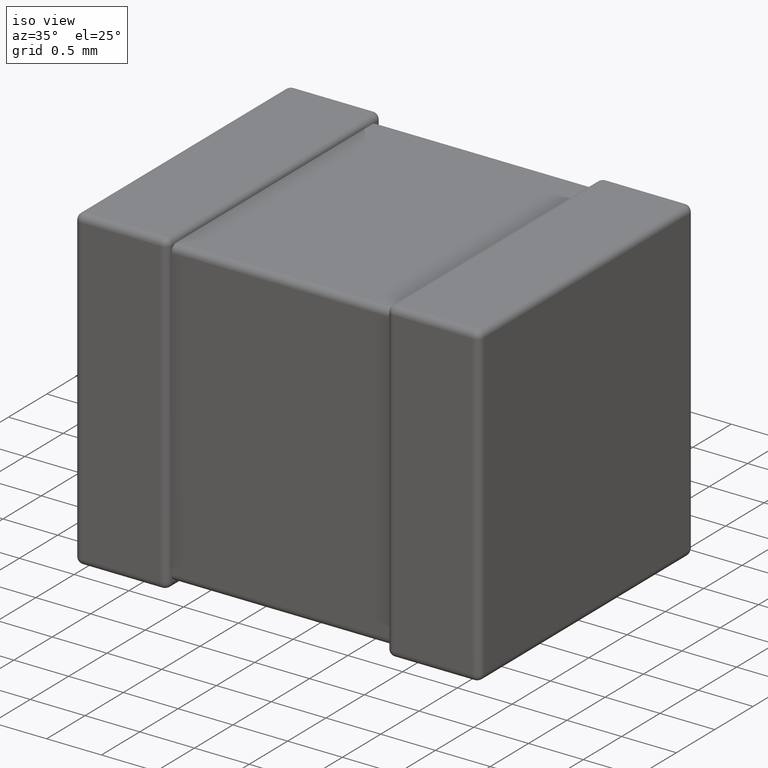
[diagram: clean part render]
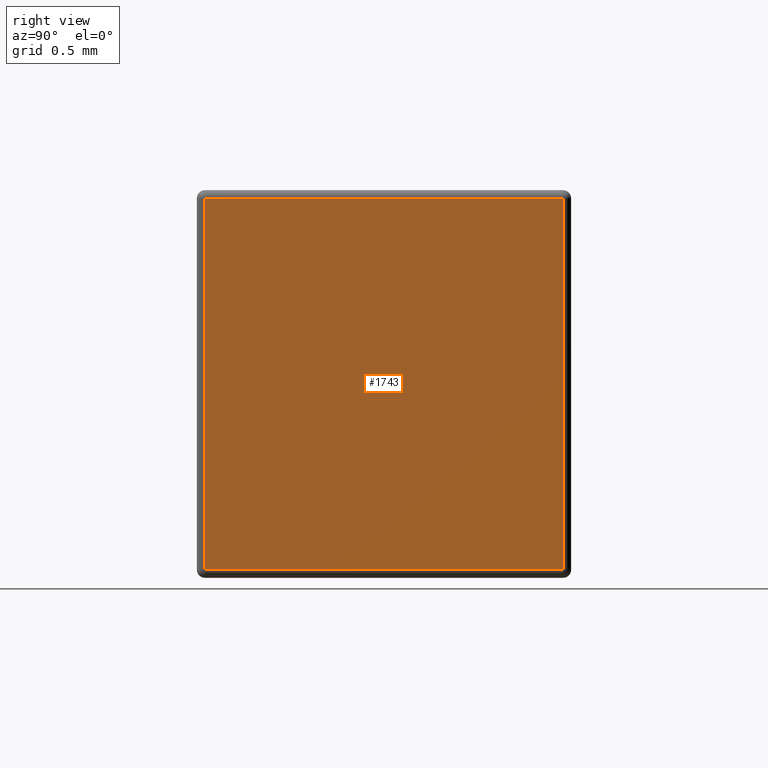
[diagram: tour spotlight — one face highlighted and labeled with its STEP entity id]
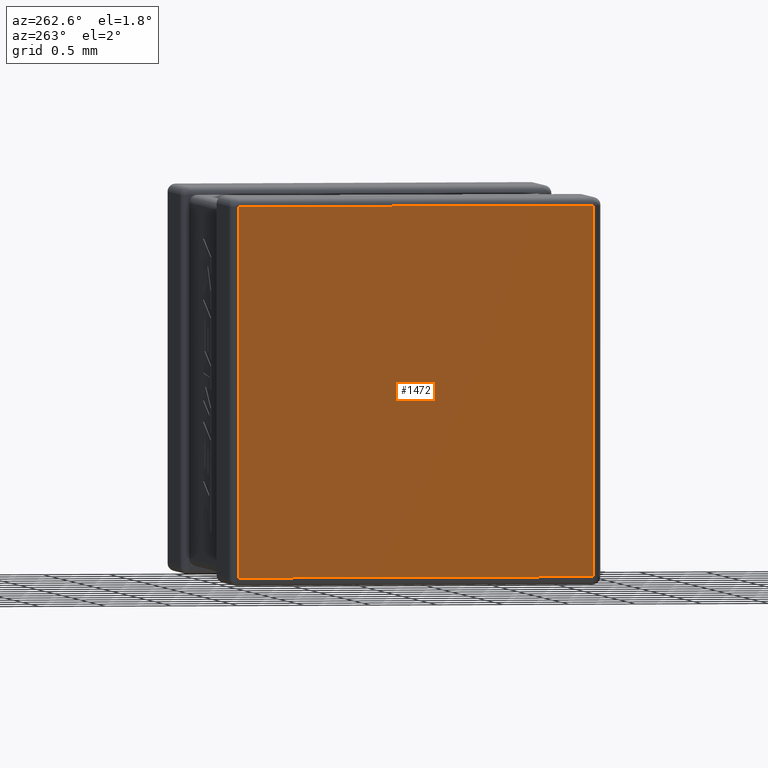
[diagram: tour spotlight — one face highlighted and labeled with its STEP entity id]
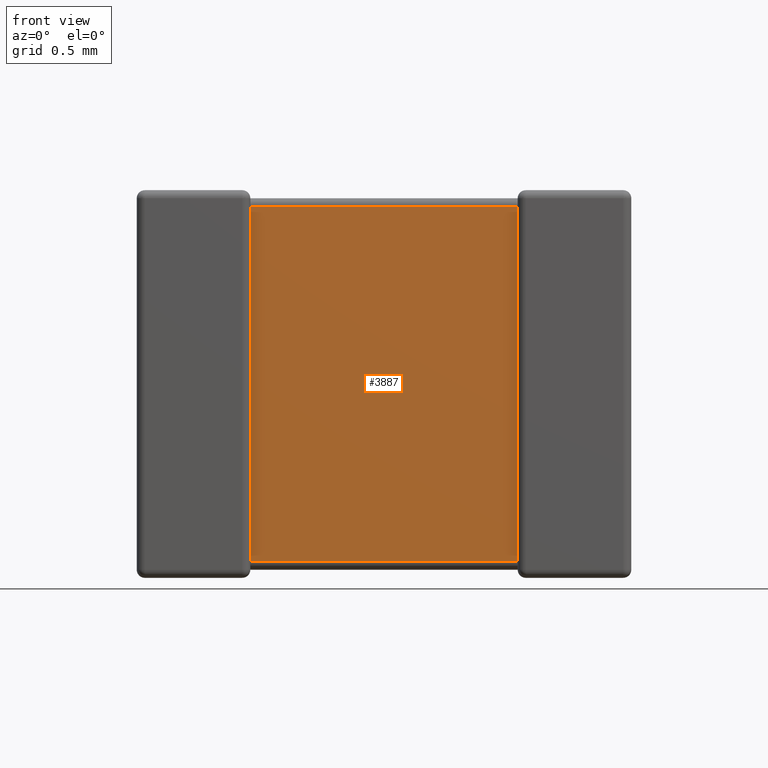
[diagram: tour spotlight — one face highlighted and labeled with its STEP entity id]
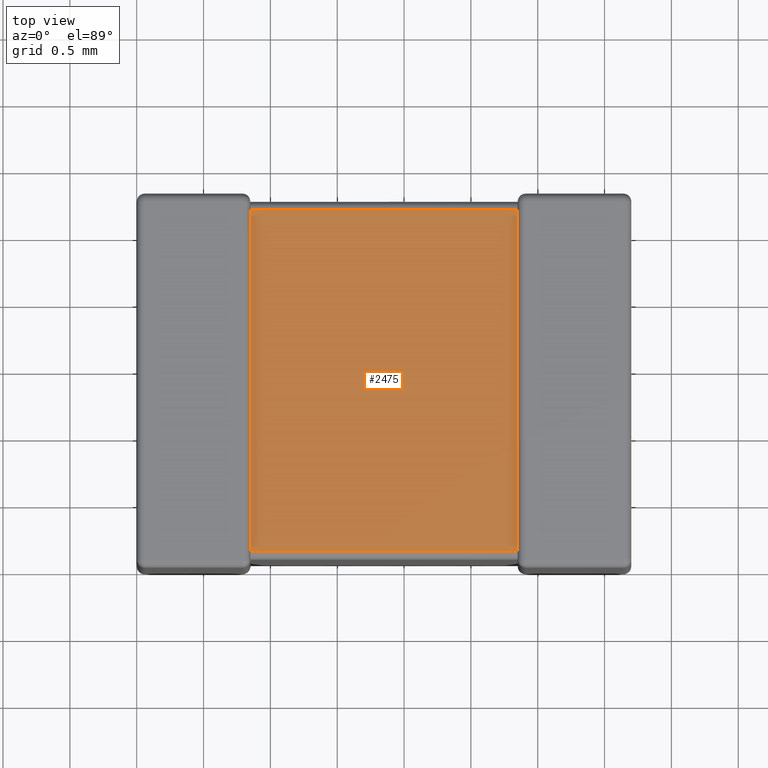
[diagram: tour spotlight — one face highlighted and labeled with its STEP entity id]
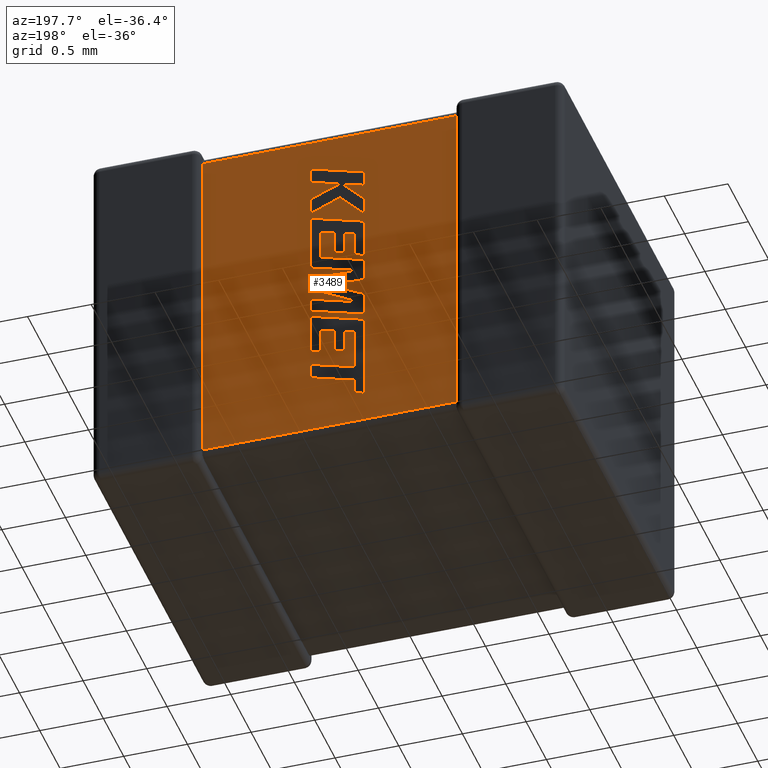
[diagram: tour spotlight — one face highlighted and labeled with its STEP entity id]
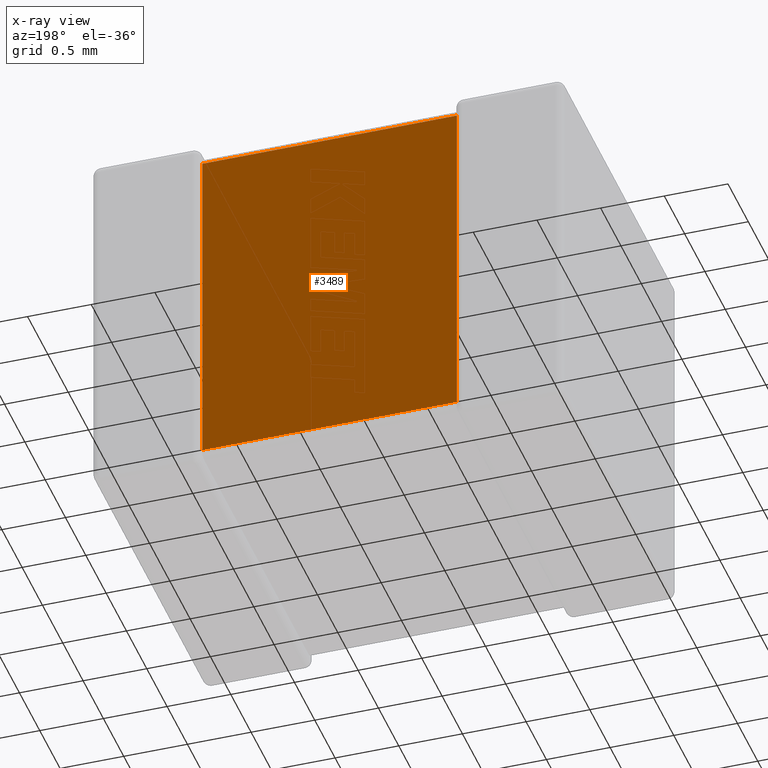
[diagram: x-ray of the same camera — body ghosted, this tour face saturated]
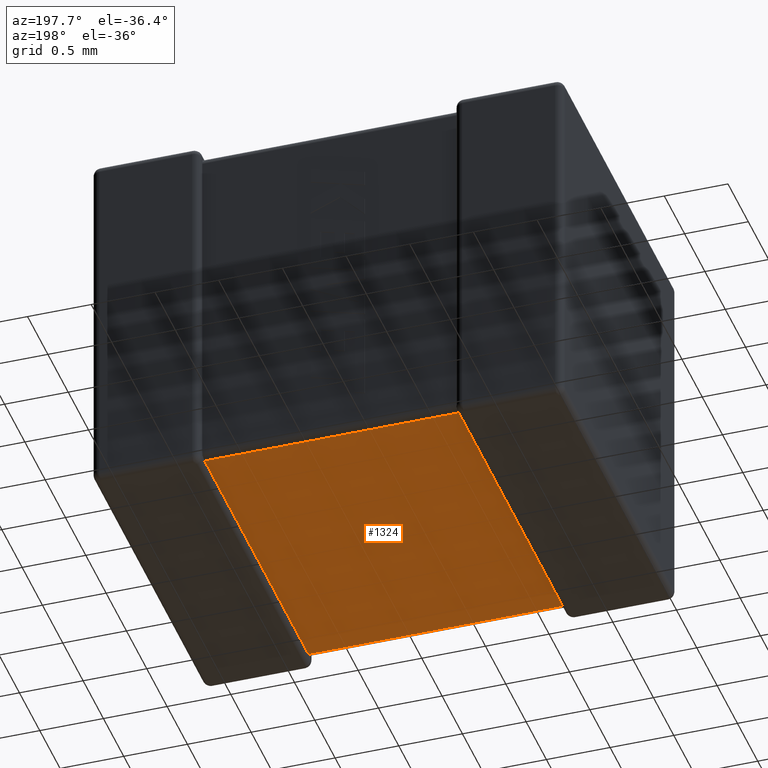
[diagram: tour spotlight — one face highlighted and labeled with its STEP entity id]
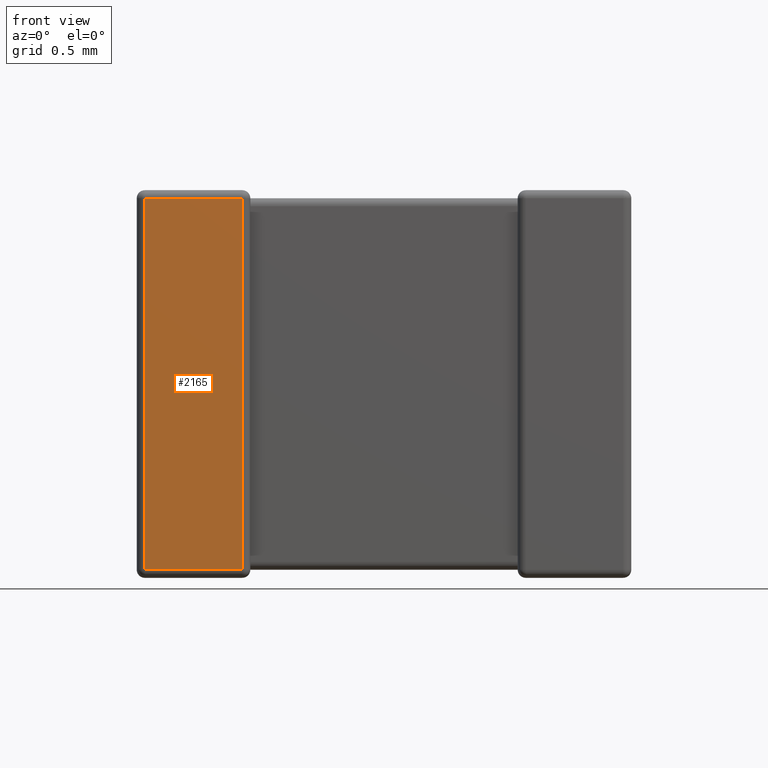
[diagram: tour spotlight — one face highlighted and labeled with its STEP entity id]
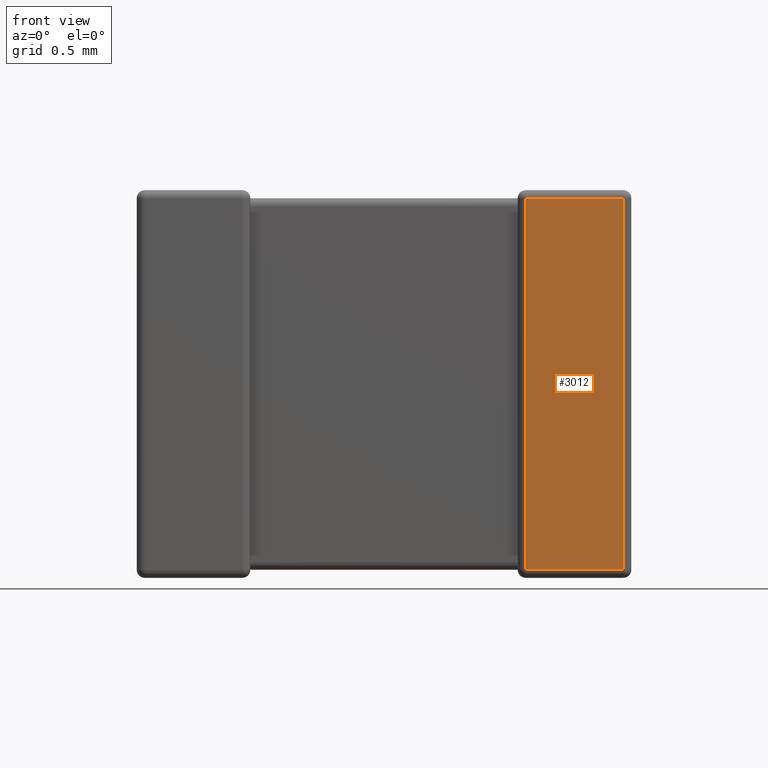
[diagram: tour spotlight — one face highlighted and labeled with its STEP entity id]
A machine part: a face-by-face anatomy tour. The part has 125 B-rep faces; the first image is the clean iso view, then the 8 largest visible faces are spotlighted one at a time (largest first), each with its STEP entity span.

Face 1 — right view, entity #1743. In plain terms, the highlighted planar face has unit normal (-1, 0, 0).
Definition (entity closure, byte-faithful):
#53 = DIRECTION ( 'NONE',  ( 0.000000000000000000, 1.000000000000000000, -0.000000000000000000 ) ) ;
#140 = LINE ( 'NONE', #3795, #195 ) ;
#195 = VECTOR ( 'NONE', #2264, 1000.000000000000000 ) ;
#249 = ORIENTED_EDGE ( 'NONE', *, *, #1127, .T. ) ;
#262 = VECTOR ( 'NONE', #4074, 1000.000000000000000 ) ;
#465 = LINE ( 'NONE', #1493, #4045 ) ;
#643 = DIRECTION ( 'NONE',  ( 0.000000000000000000, 0.000000000000000000, 1.000000000000000000 ) ) ;
#814 = ORIENTED_EDGE ( 'NONE', *, *, #1519, .T. ) ;
#1127 = EDGE_CURVE ( 'NONE', #2238, #2617, #140, .T. ) ;
#1145 = LINE ( 'NONE', #3232, #4659 ) ;
#1424 = PLANE ( 'NONE',  #3273 ) ;
#1446 = CARTESIAN_POINT ( 'NONE',  ( 3.699999999999999734, 0.000000000000000000, 0.000000000000000000 ) ) ;
#1493 = CARTESIAN_POINT ( 'NONE',  ( 3.699999999999999734, 0.000000000000000000, -2.839679999999999982 ) ) ;
#1519 = EDGE_CURVE ( 'NONE', #3490, #1730, #1145, .T. ) ;
#1730 = VERTEX_POINT ( 'NONE', #1789 ) ;
#1743 = ADVANCED_FACE ( 'NONE', ( #1761 ), #1424, .F. ) ;
#1761 = FACE_OUTER_BOUND ( 'NONE', #2454, .T. ) ;
#1789 = CARTESIAN_POINT ( 'NONE',  ( 3.699999999999999734, 2.739679999999999893, -0.06031999999999999862 ) ) ;
#1869 = EDGE_CURVE ( 'NONE', #2617, #3490, #465, .T. ) ;
#2238 = VERTEX_POINT ( 'NONE', #2569 ) ;
#2250 = LINE ( 'NONE', #3782, #262 ) ;
#2264 = DIRECTION ( 'NONE',  ( 0.000000000000000000, 0.000000000000000000, -1.000000000000000000 ) ) ;
#2454 = EDGE_LOOP ( 'NONE', ( #249, #3769, #814, #3158 ) ) ;
#2569 = CARTESIAN_POINT ( 'NONE',  ( 3.699999999999999734, 0.06031999999999999862, -0.06031999999999999862 ) ) ;
#2617 = VERTEX_POINT ( 'NONE', #3021 ) ;
#3021 = CARTESIAN_POINT ( 'NONE',  ( 3.699999999999999734, 0.06031999999999999862, -2.839679999999999982 ) ) ;
#3158 = ORIENTED_EDGE ( 'NONE', *, *, #3942, .T. ) ;
#3188 = DIRECTION ( 'NONE',  ( 0.000000000000000000, 0.000000000000000000, 1.000000000000000000 ) ) ;
#3232 = CARTESIAN_POINT ( 'NONE',  ( 3.699999999999999734, 2.739679999999999893, 0.000000000000000000 ) ) ;
#3273 = AXIS2_PLACEMENT_3D ( 'NONE', #1446, #3425, #643 ) ;
#3425 = DIRECTION ( 'NONE',  ( -1.000000000000000000, 0.000000000000000000, 0.000000000000000000 ) ) ;
#3490 = VERTEX_POINT ( 'NONE', #3786 ) ;
#3769 = ORIENTED_EDGE ( 'NONE', *, *, #1869, .T. ) ;
#3782 = CARTESIAN_POINT ( 'NONE',  ( 3.699999999999999734, 0.000000000000000000, -0.06031999999999999862 ) ) ;
#3786 = CARTESIAN_POINT ( 'NONE',  ( 3.699999999999999734, 2.739679999999999893, -2.839679999999999982 ) ) ;
#3795 = CARTESIAN_POINT ( 'NONE',  ( 3.699999999999999734, 0.06031999999999999862, 0.000000000000000000 ) ) ;
#3942 = EDGE_CURVE ( 'NONE', #1730, #2238, #2250, .T. ) ;
#4045 = VECTOR ( 'NONE', #53, 1000.000000000000000 ) ;
#4074 = DIRECTION ( 'NONE',  ( 0.000000000000000000, -1.000000000000000000, 0.000000000000000000 ) ) ;
#4659 = VECTOR ( 'NONE', #3188, 1000.000000000000000 ) ;

Face 2 — auxiliary view, entity #1472. In plain terms, the highlighted planar face has unit normal (-1, 0, 0).
Definition (entity closure, byte-faithful):
#9 = CARTESIAN_POINT ( 'NONE',  ( 0.000000000000000000, 0.000000000000000000, 0.000000000000000000 ) ) ;
#27 = VECTOR ( 'NONE', #2543, 1000.000000000000000 ) ;
#403 = CARTESIAN_POINT ( 'NONE',  ( 0.000000000000000000, 2.799999999999999822, -0.06031999999999999862 ) ) ;
#956 = VERTEX_POINT ( 'NONE', #967 ) ;
#967 = CARTESIAN_POINT ( 'NONE',  ( 0.000000000000000000, 0.06031999999999999862, -0.06031999999999999862 ) ) ;
#1040 = ORIENTED_EDGE ( 'NONE', *, *, #4539, .T. ) ;
#1121 = LINE ( 'NONE', #403, #4276 ) ;
#1128 = DIRECTION ( 'NONE',  ( -1.000000000000000000, 0.000000000000000000, 0.000000000000000000 ) ) ;
#1129 = LINE ( 'NONE', #2187, #3646 ) ;
#1301 = ORIENTED_EDGE ( 'NONE', *, *, #3139, .T. ) ;
#1413 = EDGE_CURVE ( 'NONE', #1999, #956, #1728, .T. ) ;
#1457 = CARTESIAN_POINT ( 'NONE',  ( 0.000000000000000000, 2.739679999999999893, -2.839679999999999982 ) ) ;
#1459 = ORIENTED_EDGE ( 'NONE', *, *, #1413, .T. ) ;
#1472 = ADVANCED_FACE ( 'NONE', ( #3095 ), #3549, .T. ) ;
#1728 = LINE ( 'NONE', #3885, #2753 ) ;
#1793 = DIRECTION ( 'NONE',  ( 0.000000000000000000, 0.000000000000000000, 1.000000000000000000 ) ) ;
#1999 = VERTEX_POINT ( 'NONE', #4563 ) ;
#2099 = DIRECTION ( 'NONE',  ( -0.000000000000000000, -0.000000000000000000, 1.000000000000000000 ) ) ;
#2187 = CARTESIAN_POINT ( 'NONE',  ( 0.000000000000000000, 2.739679999999999893, -2.899999999999999911 ) ) ;
#2269 = VERTEX_POINT ( 'NONE', #2597 ) ;
#2449 = VERTEX_POINT ( 'NONE', #1457 ) ;
#2543 = DIRECTION ( 'NONE',  ( -0.000000000000000000, -1.000000000000000000, -0.000000000000000000 ) ) ;
#2597 = CARTESIAN_POINT ( 'NONE',  ( 0.000000000000000000, 2.739679999999999893, -0.06031999999999999862 ) ) ;
#2753 = VECTOR ( 'NONE', #2099, 1000.000000000000000 ) ;
#2989 = ORIENTED_EDGE ( 'NONE', *, *, #4476, .T. ) ;
#3095 = FACE_OUTER_BOUND ( 'NONE', #4432, .T. ) ;
#3139 = EDGE_CURVE ( 'NONE', #956, #2269, #1121, .T. ) ;
#3225 = DIRECTION ( 'NONE',  ( -0.000000000000000000, 1.000000000000000000, -0.000000000000000000 ) ) ;
#3304 = CARTESIAN_POINT ( 'NONE',  ( 0.000000000000000000, 0.000000000000000000, -2.839679999999999982 ) ) ;
#3549 = PLANE ( 'NONE',  #4132 ) ;
#3646 = VECTOR ( 'NONE', #3649, 1000.000000000000000 ) ;
#3649 = DIRECTION ( 'NONE',  ( -0.000000000000000000, 0.000000000000000000, -1.000000000000000000 ) ) ;
#3885 = CARTESIAN_POINT ( 'NONE',  ( 0.000000000000000000, 0.06031999999999999862, 0.000000000000000000 ) ) ;
#4060 = LINE ( 'NONE', #3304, #27 ) ;
#4132 = AXIS2_PLACEMENT_3D ( 'NONE', #9, #1128, #1793 ) ;
#4276 = VECTOR ( 'NONE', #3225, 1000.000000000000000 ) ;
#4432 = EDGE_LOOP ( 'NONE', ( #2989, #1459, #1301, #1040 ) ) ;
#4476 = EDGE_CURVE ( 'NONE', #2449, #1999, #4060, .T. ) ;
#4539 = EDGE_CURVE ( 'NONE', #2269, #2449, #1129, .T. ) ;
#4563 = CARTESIAN_POINT ( 'NONE',  ( 0.000000000000000000, 0.06031999999999999862, -2.839679999999999982 ) ) ;

Face 3 — front view, entity #3887. In plain terms, the highlighted planar face has unit normal (0, -1, 0).
Definition (entity closure, byte-faithful):
#26 = VERTEX_POINT ( 'NONE', #2132 ) ;
#426 = LINE ( 'NONE', #4042, #4647 ) ;
#488 = VECTOR ( 'NONE', #3010, 1000.000000000000000 ) ;
#692 = ORIENTED_EDGE ( 'NONE', *, *, #3967, .T. ) ;
#795 = EDGE_LOOP ( 'NONE', ( #3651, #692, #976, #1414 ) ) ;
#844 = LINE ( 'NONE', #2266, #488 ) ;
#976 = ORIENTED_EDGE ( 'NONE', *, *, #1189, .T. ) ;
#1054 = CARTESIAN_POINT ( 'NONE',  ( 2.849999999999999645, 0.06031999999999999168, -2.899999999999999911 ) ) ;
#1157 = DIRECTION ( 'NONE',  ( -0.000000000000000000, -0.000000000000000000, 1.000000000000000000 ) ) ;
#1189 = EDGE_CURVE ( 'NONE', #26, #3763, #3891, .T. ) ;
#1214 = DIRECTION ( 'NONE',  ( 0.000000000000000000, -1.000000000000000000, 0.000000000000000000 ) ) ;
#1245 = VERTEX_POINT ( 'NONE', #2501 ) ;
#1321 = VECTOR ( 'NONE', #4212, 1000.000000000000000 ) ;
#1414 = ORIENTED_EDGE ( 'NONE', *, *, #3215, .T. ) ;
#1473 = PLANE ( 'NONE',  #2729 ) ;
#1801 = EDGE_CURVE ( 'NONE', #2029, #1245, #426, .T. ) ;
#2029 = VERTEX_POINT ( 'NONE', #3367 ) ;
#2094 = LINE ( 'NONE', #3875, #3947 ) ;
#2132 = CARTESIAN_POINT ( 'NONE',  ( 2.849999999999999645, 0.06031999999999999168, -2.779359999999999609 ) ) ;
#2266 = CARTESIAN_POINT ( 'NONE',  ( 0.8499999999999999778, 0.06031999999999999168, -0.1206399999999999834 ) ) ;
#2501 = CARTESIAN_POINT ( 'NONE',  ( 0.8499999999999999778, 0.06031999999999999168, -0.1206399999999999834 ) ) ;
#2630 = CARTESIAN_POINT ( 'NONE',  ( 0.8499999999999999778, 0.06031999999999999168, -2.899999999999999911 ) ) ;
#2729 = AXIS2_PLACEMENT_3D ( 'NONE', #2630, #1214, #2996 ) ;
#2731 = DIRECTION ( 'NONE',  ( 1.000000000000000000, 0.000000000000000000, -0.000000000000000000 ) ) ;
#2996 = DIRECTION ( 'NONE',  ( 0.000000000000000000, -0.000000000000000000, -1.000000000000000000 ) ) ;
#3010 = DIRECTION ( 'NONE',  ( -1.000000000000000000, -0.000000000000000000, -0.000000000000000000 ) ) ;
#3215 = EDGE_CURVE ( 'NONE', #3763, #1245, #844, .T. ) ;
#3228 = FACE_OUTER_BOUND ( 'NONE', #795, .T. ) ;
#3367 = CARTESIAN_POINT ( 'NONE',  ( 0.8499999999999999778, 0.06031999999999999168, -2.779359999999999609 ) ) ;
#3651 = ORIENTED_EDGE ( 'NONE', *, *, #1801, .F. ) ;
#3763 = VERTEX_POINT ( 'NONE', #4641 ) ;
#3875 = CARTESIAN_POINT ( 'NONE',  ( 2.849999999999999645, 0.06031999999999999168, -2.779359999999999609 ) ) ;
#3887 = ADVANCED_FACE ( 'NONE', ( #3228 ), #1473, .T. ) ;
#3891 = LINE ( 'NONE', #1054, #1321 ) ;
#3947 = VECTOR ( 'NONE', #2731, 1000.000000000000000 ) ;
#3967 = EDGE_CURVE ( 'NONE', #2029, #26, #2094, .T. ) ;
#4042 = CARTESIAN_POINT ( 'NONE',  ( 0.8499999999999999778, 0.06031999999999999168, -2.899999999999999911 ) ) ;
#4212 = DIRECTION ( 'NONE',  ( -0.000000000000000000, -0.000000000000000000, 1.000000000000000000 ) ) ;
#4641 = CARTESIAN_POINT ( 'NONE',  ( 2.849999999999999645, 0.06031999999999999168, -0.1206399999999999834 ) ) ;
#4647 = VECTOR ( 'NONE', #1157, 1000.000000000000000 ) ;

Face 4 — top view, entity #2475. In plain terms, the highlighted planar face has unit normal (-0, 0, 1).
Definition (entity closure, byte-faithful):
#42 = CARTESIAN_POINT ( 'NONE',  ( 0.8500000000000000888, 2.679359999999999964, -0.06031999999999999168 ) ) ;
#138 = CARTESIAN_POINT ( 'NONE',  ( 2.849999999999999645, 2.679359999999999964, -0.06031999999999999168 ) ) ;
#377 = ORIENTED_EDGE ( 'NONE', *, *, #3515, .T. ) ;
#413 = DIRECTION ( 'NONE',  ( 1.000000000000000000, 0.000000000000000000, 0.000000000000000000 ) ) ;
#598 = LINE ( 'NONE', #1254, #2071 ) ;
#654 = ORIENTED_EDGE ( 'NONE', *, *, #3864, .T. ) ;
#721 = DIRECTION ( 'NONE',  ( -0.000000000000000000, 0.000000000000000000, 1.000000000000000000 ) ) ;
#784 = PLANE ( 'NONE',  #3674 ) ;
#855 = DIRECTION ( 'NONE',  ( -1.000000000000000000, 0.000000000000000000, -0.000000000000000000 ) ) ;
#1072 = LINE ( 'NONE', #2492, #4558 ) ;
#1102 = ORIENTED_EDGE ( 'NONE', *, *, #2004, .T. ) ;
#1254 = CARTESIAN_POINT ( 'NONE',  ( 2.849999999999999645, 0.000000000000000000, -0.06031999999999999168 ) ) ;
#1323 = VECTOR ( 'NONE', #2231, 1000.000000000000000 ) ;
#1415 = ORIENTED_EDGE ( 'NONE', *, *, #2835, .F. ) ;
#1464 = VERTEX_POINT ( 'NONE', #2451 ) ;
#1881 = CARTESIAN_POINT ( 'NONE',  ( 0.8500000000000000888, 0.000000000000000000, -0.06031999999999999168 ) ) ;
#2004 = EDGE_CURVE ( 'NONE', #3510, #4343, #598, .T. ) ;
#2034 = CARTESIAN_POINT ( 'NONE',  ( 0.8500000000000000888, 2.679359999999999964, -0.06031999999999999168 ) ) ;
#2071 = VECTOR ( 'NONE', #4094, 1000.000000000000000 ) ;
#2204 = DIRECTION ( 'NONE',  ( 1.000000000000000000, 0.000000000000000000, 0.000000000000000000 ) ) ;
#2212 = CARTESIAN_POINT ( 'NONE',  ( 0.8500000000000000888, 0.000000000000000000, -0.06031999999999999168 ) ) ;
#2231 = DIRECTION ( 'NONE',  ( -0.000000000000000000, 1.000000000000000000, -0.000000000000000000 ) ) ;
#2386 = VERTEX_POINT ( 'NONE', #2034 ) ;
#2451 = CARTESIAN_POINT ( 'NONE',  ( 0.8500000000000000888, 0.1206399999999999834, -0.06031999999999999168 ) ) ;
#2475 = ADVANCED_FACE ( 'NONE', ( #2904 ), #784, .T. ) ;
#2492 = CARTESIAN_POINT ( 'NONE',  ( 0.8500000000000000888, 0.1206399999999999834, -0.06031999999999999168 ) ) ;
#2614 = LINE ( 'NONE', #42, #3108 ) ;
#2835 = EDGE_CURVE ( 'NONE', #1464, #2386, #2942, .T. ) ;
#2904 = FACE_OUTER_BOUND ( 'NONE', #3356, .T. ) ;
#2942 = LINE ( 'NONE', #1881, #1323 ) ;
#3108 = VECTOR ( 'NONE', #855, 1000.000000000000000 ) ;
#3356 = EDGE_LOOP ( 'NONE', ( #1415, #654, #1102, #377 ) ) ;
#3378 = CARTESIAN_POINT ( 'NONE',  ( 2.849999999999999645, 0.1206399999999999834, -0.06031999999999999168 ) ) ;
#3510 = VERTEX_POINT ( 'NONE', #3378 ) ;
#3515 = EDGE_CURVE ( 'NONE', #4343, #2386, #2614, .T. ) ;
#3674 = AXIS2_PLACEMENT_3D ( 'NONE', #2212, #721, #413 ) ;
#3864 = EDGE_CURVE ( 'NONE', #1464, #3510, #1072, .T. ) ;
#4094 = DIRECTION ( 'NONE',  ( -0.000000000000000000, 1.000000000000000000, -0.000000000000000000 ) ) ;
#4343 = VERTEX_POINT ( 'NONE', #138 ) ;
#4558 = VECTOR ( 'NONE', #2204, 1000.000000000000000 ) ;

Face 5 — auxiliary view, entity #3489. An x-ray twin of the same camera follows (body ghosted, this face saturated) — the face is partly hidden behind the body. In plain terms, the highlighted planar face has unit normal (0, -1, 0).
Definition (entity closure, byte-faithful):
#157 = LINE ( 'NONE', #1669, #4347 ) ;
#355 = FACE_OUTER_BOUND ( 'NONE', #1362, .T. ) ;
#485 = CARTESIAN_POINT ( 'NONE',  ( 2.849999999999999645, 2.739679999999999893, -0.1206399999999999834 ) ) ;
#648 = VECTOR ( 'NONE', #2271, 1000.000000000000000 ) ;
#661 = ORIENTED_EDGE ( 'NONE', *, *, #1338, .T. ) ;
#700 = PLANE ( 'NONE',  #1171 ) ;
#777 = EDGE_CURVE ( 'NONE', #1891, #2216, #4099, .T. ) ;
#846 = CARTESIAN_POINT ( 'NONE',  ( 0.8499999999999999778, 2.739679999999999893, -2.899999999999999911 ) ) ;
#926 = ORIENTED_EDGE ( 'NONE', *, *, #777, .T. ) ;
#1082 = CARTESIAN_POINT ( 'NONE',  ( 0.8499999999999999778, 2.739679999999999893, -0.1206399999999999834 ) ) ;
#1140 = VERTEX_POINT ( 'NONE', #1229 ) ;
#1149 = VERTEX_POINT ( 'NONE', #4093 ) ;
#1171 = AXIS2_PLACEMENT_3D ( 'NONE', #4371, #1639, #1940 ) ;
#1202 = LINE ( 'NONE', #485, #2980 ) ;
#1229 = CARTESIAN_POINT ( 'NONE',  ( 2.849999999999999645, 2.739679999999999893, -0.1206399999999999834 ) ) ;
#1338 = EDGE_CURVE ( 'NONE', #2216, #1140, #1202, .T. ) ;
#1362 = EDGE_LOOP ( 'NONE', ( #3614, #2854, #926, #661 ) ) ;
#1639 = DIRECTION ( 'NONE',  ( 0.000000000000000000, -1.000000000000000000, 0.000000000000000000 ) ) ;
#1669 = CARTESIAN_POINT ( 'NONE',  ( 2.849999999999999645, 2.739679999999999893, -2.899999999999999911 ) ) ;
#1891 = VERTEX_POINT ( 'NONE', #2552 ) ;
#1922 = DIRECTION ( 'NONE',  ( 1.000000000000000000, 0.000000000000000000, -0.000000000000000000 ) ) ;
#1940 = DIRECTION ( 'NONE',  ( 0.000000000000000000, -0.000000000000000000, -1.000000000000000000 ) ) ;
#2110 = EDGE_CURVE ( 'NONE', #1149, #1140, #157, .T. ) ;
#2202 = VECTOR ( 'NONE', #4322, 1000.000000000000000 ) ;
#2216 = VERTEX_POINT ( 'NONE', #1082 ) ;
#2271 = DIRECTION ( 'NONE',  ( -0.000000000000000000, -0.000000000000000000, 1.000000000000000000 ) ) ;
#2296 = DIRECTION ( 'NONE',  ( -0.000000000000000000, -0.000000000000000000, 1.000000000000000000 ) ) ;
#2552 = CARTESIAN_POINT ( 'NONE',  ( 0.8499999999999999778, 2.739679999999999893, -2.779359999999999609 ) ) ;
#2854 = ORIENTED_EDGE ( 'NONE', *, *, #4180, .T. ) ;
#2980 = VECTOR ( 'NONE', #1922, 1000.000000000000000 ) ;
#3489 = ADVANCED_FACE ( 'NONE', ( #355 ), #700, .F. ) ;
#3590 = CARTESIAN_POINT ( 'NONE',  ( 0.8499999999999999778, 2.739679999999999893, -2.779359999999999609 ) ) ;
#3614 = ORIENTED_EDGE ( 'NONE', *, *, #2110, .F. ) ;
#4093 = CARTESIAN_POINT ( 'NONE',  ( 2.849999999999999645, 2.739679999999999893, -2.779359999999999609 ) ) ;
#4099 = LINE ( 'NONE', #846, #648 ) ;
#4180 = EDGE_CURVE ( 'NONE', #1149, #1891, #4280, .T. ) ;
#4280 = LINE ( 'NONE', #3590, #2202 ) ;
#4322 = DIRECTION ( 'NONE',  ( -1.000000000000000000, -0.000000000000000000, -0.000000000000000000 ) ) ;
#4347 = VECTOR ( 'NONE', #2296, 1000.000000000000000 ) ;
#4371 = CARTESIAN_POINT ( 'NONE',  ( 0.8499999999999999778, 2.739679999999999893, -2.899999999999999911 ) ) ;

Face 6 — auxiliary view, entity #1324. In plain terms, the highlighted planar face has unit normal (-0, 0, 1).
Definition (entity closure, byte-faithful):
#164 = LINE ( 'NONE', #2968, #3328 ) ;
#508 = CARTESIAN_POINT ( 'NONE',  ( 0.8500000000000000888, 0.000000000000000000, -2.839679999999999982 ) ) ;
#554 = LINE ( 'NONE', #508, #3726 ) ;
#633 = EDGE_CURVE ( 'NONE', #958, #2153, #2159, .T. ) ;
#701 = CARTESIAN_POINT ( 'NONE',  ( 0.8500000000000000888, 0.1206399999999999834, -2.839679999999999982 ) ) ;
#764 = VERTEX_POINT ( 'NONE', #1674 ) ;
#816 = FACE_OUTER_BOUND ( 'NONE', #1745, .T. ) ;
#958 = VERTEX_POINT ( 'NONE', #2394 ) ;
#1178 = CARTESIAN_POINT ( 'NONE',  ( 0.8500000000000000888, 0.000000000000000000, -2.839679999999999982 ) ) ;
#1324 = ADVANCED_FACE ( 'NONE', ( #816 ), #3437, .F. ) ;
#1674 = CARTESIAN_POINT ( 'NONE',  ( 2.849999999999999645, 0.1206399999999999834, -2.839679999999999982 ) ) ;
#1745 = EDGE_LOOP ( 'NONE', ( #3843, #3211, #2719, #4455 ) ) ;
#1762 = CARTESIAN_POINT ( 'NONE',  ( 0.8499999999999999778, 0.1206399999999999834, -2.839679999999999982 ) ) ;
#1805 = LINE ( 'NONE', #1762, #2365 ) ;
#1893 = DIRECTION ( 'NONE',  ( -0.000000000000000000, 0.000000000000000000, 1.000000000000000000 ) ) ;
#2153 = VERTEX_POINT ( 'NONE', #2749 ) ;
#2159 = LINE ( 'NONE', #3316, #2482 ) ;
#2365 = VECTOR ( 'NONE', #3598, 1000.000000000000000 ) ;
#2394 = CARTESIAN_POINT ( 'NONE',  ( 0.8500000000000000888, 2.679359999999999964, -2.839679999999999982 ) ) ;
#2482 = VECTOR ( 'NONE', #4356, 1000.000000000000000 ) ;
#2608 = DIRECTION ( 'NONE',  ( -0.000000000000000000, 1.000000000000000000, -0.000000000000000000 ) ) ;
#2719 = ORIENTED_EDGE ( 'NONE', *, *, #3553, .T. ) ;
#2749 = CARTESIAN_POINT ( 'NONE',  ( 2.849999999999999645, 2.679359999999999964, -2.839679999999999982 ) ) ;
#2901 = AXIS2_PLACEMENT_3D ( 'NONE', #1178, #1893, #4445 ) ;
#2968 = CARTESIAN_POINT ( 'NONE',  ( 2.849999999999999645, 0.000000000000000000, -2.839679999999999982 ) ) ;
#3104 = EDGE_CURVE ( 'NONE', #764, #4216, #1805, .T. ) ;
#3211 = ORIENTED_EDGE ( 'NONE', *, *, #3104, .T. ) ;
#3316 = CARTESIAN_POINT ( 'NONE',  ( 0.8500000000000000888, 2.679359999999999964, -2.839679999999999982 ) ) ;
#3328 = VECTOR ( 'NONE', #2608, 1000.000000000000000 ) ;
#3437 = PLANE ( 'NONE',  #2901 ) ;
#3553 = EDGE_CURVE ( 'NONE', #4216, #958, #554, .T. ) ;
#3598 = DIRECTION ( 'NONE',  ( -1.000000000000000000, 0.000000000000000000, -0.000000000000000000 ) ) ;
#3726 = VECTOR ( 'NONE', #4169, 1000.000000000000000 ) ;
#3843 = ORIENTED_EDGE ( 'NONE', *, *, #3896, .F. ) ;
#3896 = EDGE_CURVE ( 'NONE', #764, #2153, #164, .T. ) ;
#4169 = DIRECTION ( 'NONE',  ( -0.000000000000000000, 1.000000000000000000, -0.000000000000000000 ) ) ;
#4216 = VERTEX_POINT ( 'NONE', #701 ) ;
#4356 = DIRECTION ( 'NONE',  ( 1.000000000000000000, 0.000000000000000000, 0.000000000000000000 ) ) ;
#4445 = DIRECTION ( 'NONE',  ( 1.000000000000000000, 0.000000000000000000, 0.000000000000000000 ) ) ;
#4455 = ORIENTED_EDGE ( 'NONE', *, *, #633, .T. ) ;

Face 7 — front view, entity #2165. In plain terms, the highlighted planar face has unit normal (-0, 1, 0).
Definition (entity closure, byte-faithful):
#343 = VERTEX_POINT ( 'NONE', #3191 ) ;
#434 = EDGE_LOOP ( 'NONE', ( #2560, #1717, #4632, #2665 ) ) ;
#459 = VERTEX_POINT ( 'NONE', #506 ) ;
#506 = CARTESIAN_POINT ( 'NONE',  ( 0.7896799999999952746, 0.000000000000000000, -2.839679999999999982 ) ) ;
#590 = VERTEX_POINT ( 'NONE', #626 ) ;
#626 = CARTESIAN_POINT ( 'NONE',  ( 0.06031999999999999168, 0.000000000000000000, -0.06031999999999999862 ) ) ;
#913 = LINE ( 'NONE', #2066, #3122 ) ;
#1330 = VECTOR ( 'NONE', #2761, 1000.000000000000000 ) ;
#1346 = CARTESIAN_POINT ( 'NONE',  ( 3.699999999999999734, 0.000000000000000000, 0.000000000000000000 ) ) ;
#1374 = LINE ( 'NONE', #4574, #1330 ) ;
#1679 = DIRECTION ( 'NONE',  ( 0.000000000000000000, 0.000000000000000000, 1.000000000000000000 ) ) ;
#1681 = VECTOR ( 'NONE', #2764, 1000.000000000000000 ) ;
#1700 = AXIS2_PLACEMENT_3D ( 'NONE', #1346, #2774, #4277 ) ;
#1717 = ORIENTED_EDGE ( 'NONE', *, *, #3754, .T. ) ;
#1972 = VECTOR ( 'NONE', #1679, 1000.000000000000000 ) ;
#2027 = LINE ( 'NONE', #3905, #1972 ) ;
#2066 = CARTESIAN_POINT ( 'NONE',  ( 3.699999999999999734, 0.000000000000000000, -0.06031999999999999862 ) ) ;
#2165 = ADVANCED_FACE ( 'NONE', ( #4628 ), #2839, .F. ) ;
#2560 = ORIENTED_EDGE ( 'NONE', *, *, #3671, .T. ) ;
#2665 = ORIENTED_EDGE ( 'NONE', *, *, #2900, .T. ) ;
#2761 = DIRECTION ( 'NONE',  ( 0.000000000000000000, 0.000000000000000000, -1.000000000000000000 ) ) ;
#2764 = DIRECTION ( 'NONE',  ( 1.000000000000000000, 0.000000000000000000, -0.000000000000000000 ) ) ;
#2774 = DIRECTION ( 'NONE',  ( -0.000000000000000000, 1.000000000000000000, 0.000000000000000000 ) ) ;
#2839 = PLANE ( 'NONE',  #1700 ) ;
#2900 = EDGE_CURVE ( 'NONE', #590, #343, #1374, .T. ) ;
#3122 = VECTOR ( 'NONE', #4524, 1000.000000000000000 ) ;
#3142 = CARTESIAN_POINT ( 'NONE',  ( 0.7896799999999952746, 0.000000000000000000, -0.06031999999999999862 ) ) ;
#3144 = LINE ( 'NONE', #3545, #1681 ) ;
#3191 = CARTESIAN_POINT ( 'NONE',  ( 0.06031999999999999168, 0.000000000000000000, -2.839679999999999982 ) ) ;
#3363 = EDGE_CURVE ( 'NONE', #4002, #590, #913, .T. ) ;
#3545 = CARTESIAN_POINT ( 'NONE',  ( 3.699999999999999734, 0.000000000000000000, -2.839679999999999982 ) ) ;
#3671 = EDGE_CURVE ( 'NONE', #343, #459, #3144, .T. ) ;
#3754 = EDGE_CURVE ( 'NONE', #459, #4002, #2027, .T. ) ;
#3905 = CARTESIAN_POINT ( 'NONE',  ( 0.7896799999999952746, 0.000000000000000000, 0.000000000000000000 ) ) ;
#4002 = VERTEX_POINT ( 'NONE', #3142 ) ;
#4277 = DIRECTION ( 'NONE',  ( 0.000000000000000000, -0.000000000000000000, 1.000000000000000000 ) ) ;
#4524 = DIRECTION ( 'NONE',  ( -1.000000000000000000, 0.000000000000000000, 0.000000000000000000 ) ) ;
#4574 = CARTESIAN_POINT ( 'NONE',  ( 0.06031999999999999168, 0.000000000000000000, -2.899999999999999911 ) ) ;
#4628 = FACE_OUTER_BOUND ( 'NONE', #434, .T. ) ;
#4632 = ORIENTED_EDGE ( 'NONE', *, *, #3363, .T. ) ;

Face 8 — front view, entity #3012. In plain terms, the highlighted planar face has unit normal (-0, 1, 0).
Definition (entity closure, byte-faithful):
#118 = AXIS2_PLACEMENT_3D ( 'NONE', #2175, #336, #2510 ) ;
#212 = ORIENTED_EDGE ( 'NONE', *, *, #1690, .T. ) ;
#254 = LINE ( 'NONE', #2358, #1318 ) ;
#336 = DIRECTION ( 'NONE',  ( -0.000000000000000000, 1.000000000000000000, 0.000000000000000000 ) ) ;
#420 = DIRECTION ( 'NONE',  ( 1.000000000000000000, 0.000000000000000000, -0.000000000000000000 ) ) ;
#486 = VECTOR ( 'NONE', #420, 1000.000000000000000 ) ;
#502 = VECTOR ( 'NONE', #4441, 1000.000000000000000 ) ;
#528 = CARTESIAN_POINT ( 'NONE',  ( 3.639679999999999804, 0.000000000000000000, 0.000000000000000000 ) ) ;
#541 = LINE ( 'NONE', #1580, #2135 ) ;
#983 = CARTESIAN_POINT ( 'NONE',  ( 2.910319999999999574, 0.000000000000000000, -2.839679999999999982 ) ) ;
#1204 = LINE ( 'NONE', #2621, #486 ) ;
#1318 = VECTOR ( 'NONE', #3124, 1000.000000000000000 ) ;
#1469 = PLANE ( 'NONE',  #118 ) ;
#1580 = CARTESIAN_POINT ( 'NONE',  ( 2.910319999999999574, 0.000000000000000000, 0.000000000000000000 ) ) ;
#1690 = EDGE_CURVE ( 'NONE', #2771, #2950, #2254, .T. ) ;
#1866 = ORIENTED_EDGE ( 'NONE', *, *, #2091, .T. ) ;
#2091 = EDGE_CURVE ( 'NONE', #3190, #2117, #541, .T. ) ;
#2117 = VERTEX_POINT ( 'NONE', #983 ) ;
#2135 = VECTOR ( 'NONE', #3009, 1000.000000000000000 ) ;
#2175 = CARTESIAN_POINT ( 'NONE',  ( 3.699999999999999734, 0.000000000000000000, 0.000000000000000000 ) ) ;
#2254 = LINE ( 'NONE', #528, #502 ) ;
#2358 = CARTESIAN_POINT ( 'NONE',  ( 3.699999999999999734, 0.000000000000000000, -0.06031999999999999862 ) ) ;
#2397 = CARTESIAN_POINT ( 'NONE',  ( 3.639679999999999804, 0.000000000000000000, -0.06031999999999999862 ) ) ;
#2510 = DIRECTION ( 'NONE',  ( 0.000000000000000000, -0.000000000000000000, 1.000000000000000000 ) ) ;
#2621 = CARTESIAN_POINT ( 'NONE',  ( 3.699999999999999734, 0.000000000000000000, -2.839679999999999982 ) ) ;
#2771 = VERTEX_POINT ( 'NONE', #3015 ) ;
#2857 = ORIENTED_EDGE ( 'NONE', *, *, #4405, .T. ) ;
#2950 = VERTEX_POINT ( 'NONE', #2397 ) ;
#3009 = DIRECTION ( 'NONE',  ( 0.000000000000000000, 0.000000000000000000, -1.000000000000000000 ) ) ;
#3012 = ADVANCED_FACE ( 'NONE', ( #3618 ), #1469, .F. ) ;
#3015 = CARTESIAN_POINT ( 'NONE',  ( 3.639679999999999804, 0.000000000000000000, -2.839679999999999982 ) ) ;
#3124 = DIRECTION ( 'NONE',  ( -1.000000000000000000, 0.000000000000000000, 0.000000000000000000 ) ) ;
#3190 = VERTEX_POINT ( 'NONE', #4398 ) ;
#3618 = FACE_OUTER_BOUND ( 'NONE', #4416, .T. ) ;
#3957 = ORIENTED_EDGE ( 'NONE', *, *, #4281, .T. ) ;
#4281 = EDGE_CURVE ( 'NONE', #2117, #2771, #1204, .T. ) ;
#4398 = CARTESIAN_POINT ( 'NONE',  ( 2.910319999999999574, 0.000000000000000000, -0.06031999999999999862 ) ) ;
#4405 = EDGE_CURVE ( 'NONE', #2950, #3190, #254, .T. ) ;
#4416 = EDGE_LOOP ( 'NONE', ( #2857, #1866, #3957, #212 ) ) ;
#4441 = DIRECTION ( 'NONE',  ( -0.000000000000000000, -0.000000000000000000, 1.000000000000000000 ) ) ;